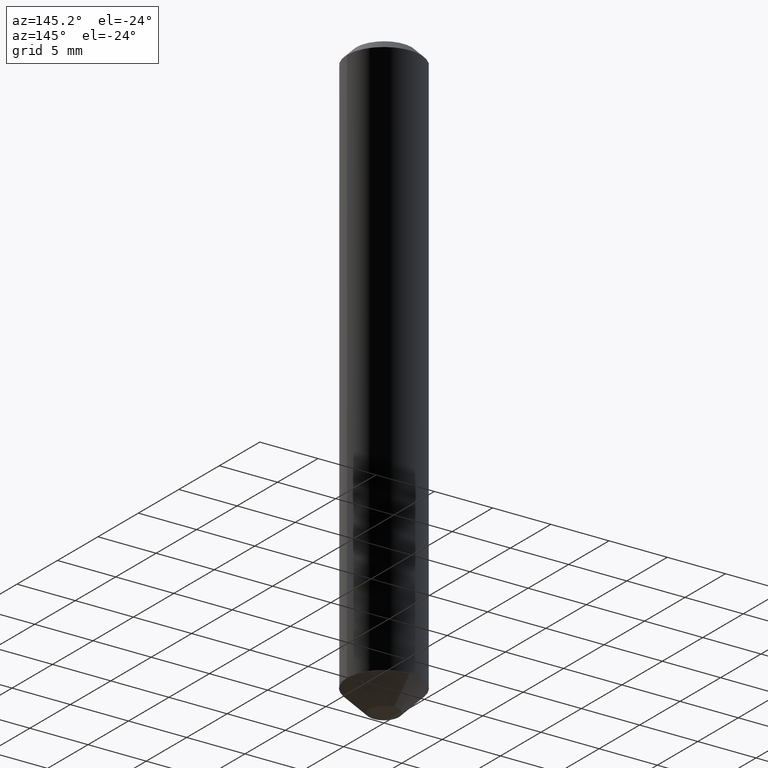
[diagram: clean part render]
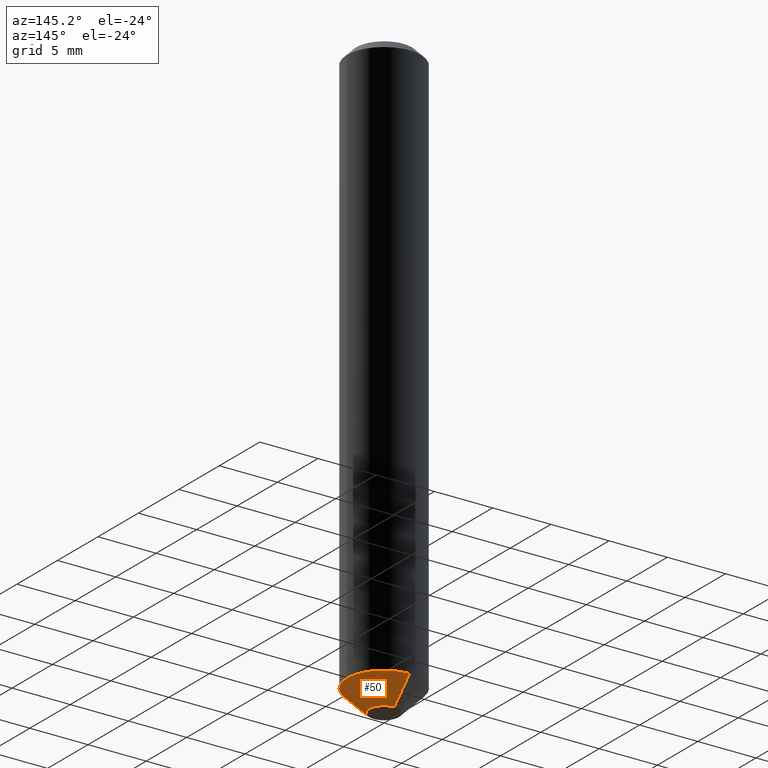
[diagram: same view with one face highlighted and labeled with its STEP entity id]
A machine part, auxiliary view. The second image highlights one B-rep face of the part: STEP entity #50.
In plain terms, the highlighted conical surface has half-angle 45.192 deg.
Its self-contained STEP definition (entity closure, byte-faithful):
#9 = AXIS2_PLACEMENT_3D ( 'NONE', #256, #299, #188 ) ;
#43 = CARTESIAN_POINT ( 'NONE',  ( 8.728703347108306705E-16, 0.1249999999999933248, -1.925499999999999989 ) ) ;
#45 = CARTESIAN_POINT ( 'NONE',  ( -6.110092342975009069E-16, -0.05000000000000699718, -1.999999999999999778 ) ) ;
#50 = ADVANCED_FACE ( 'NONE', ( #100 ), #413, .T. ) ;
#63 = ORIENTED_EDGE ( 'NONE', *, *, #178, .T. ) ;
#71 = CARTESIAN_POINT ( 'NONE',  ( 8.881784197001733529E-16, 0.1249999999999934358, -1.925499999999999989 ) ) ;
#79 = CARTESIAN_POINT ( 'NONE',  ( -8.575622497213960858E-16, -0.1250000000000070222, -1.925499999999998879 ) ) ;
#86 = VERTEX_POINT ( 'NONE', #79 ) ;
#94 = AXIS2_PLACEMENT_3D ( 'NONE', #135, #386, #128 ) ;
#98 = DIRECTION ( 'NONE',  ( -6.982962677686265922E-15, -1.000000000000000000, 4.370956789862815627E-15 ) ) ;
#100 = FACE_OUTER_BOUND ( 'NONE', #353, .T. ) ;
#119 = ORIENTED_EDGE ( 'NONE', *, *, #185, .F. ) ;
#123 = VERTEX_POINT ( 'NONE', #279 ) ;
#128 = DIRECTION ( 'NONE',  ( 6.982962677686266711E-15, 1.000000000000000000, -5.463695987328525648E-15 ) ) ;
#130 = DIRECTION ( 'NONE',  ( 5.041071339380618212E-15, 0.7094677189244624760, 0.7047379341316314383 ) ) ;
#135 = CARTESIAN_POINT ( 'NONE',  ( 4.890498988144930849E-29, -6.983590812541921448E-15, -2.000000000000000000 ) ) ;
#137 = DIRECTION ( 'NONE',  ( -4.954186602272732689E-15, -0.7094677189244577020, 0.7047379341316364343 ) ) ;
#178 = EDGE_CURVE ( 'NONE', #397, #86, #366, .T. ) ;
#179 = EDGE_CURVE ( 'NONE', #123, #397, #360, .T. ) ;
#185 = EDGE_CURVE ( 'NONE', #123, #246, #290, .T. ) ;
#188 = DIRECTION ( 'NONE',  ( 6.982962677686265922E-15, 1.000000000000000000, -4.370956789862815627E-15 ) ) ;
#208 = CARTESIAN_POINT ( 'NONE',  ( -8.728703347107373877E-16, -0.1250000000000068834, -1.925499999999998879 ) ) ;
#215 = ORIENTED_EDGE ( 'NONE', *, *, #179, .T. ) ;
#231 = CARTESIAN_POINT ( 'NONE',  ( 4.708747262147976865E-29, -6.722851505508178377E-15, -1.925499999999999545 ) ) ;
#238 = VECTOR ( 'NONE', #130, 39.37007874015748854 ) ;
#241 = LINE ( 'NONE', #208, #253 ) ;
#246 = VERTEX_POINT ( 'NONE', #45 ) ;
#253 = VECTOR ( 'NONE', #137, 39.37007874015748143 ) ;
#256 = CARTESIAN_POINT ( 'NONE',  ( 4.708747262147976865E-29, -6.722851505508178377E-15, -1.925499999999999545 ) ) ;
#279 = CARTESIAN_POINT ( 'NONE',  ( 6.217248937901361381E-16, 0.04999999999999302919, -2.000000000000000444 ) ) ;
#290 = CIRCLE ( 'NONE', #94, 0.05000000000000000971 ) ;
#299 = DIRECTION ( 'NONE',  ( 2.439620483180574528E-29, -3.499856470251552244E-15, -1.000000000000000000 ) ) ;
#329 = EDGE_CURVE ( 'NONE', #246, #86, #241, .T. ) ;
#353 = EDGE_LOOP ( 'NONE', ( #119, #215, #63, #377 ) ) ;
#360 = LINE ( 'NONE', #71, #238 ) ;
#365 = DIRECTION ( 'NONE',  ( -2.439620483180574528E-29, 3.499856470251552244E-15, 1.000000000000000000 ) ) ;
#366 = CIRCLE ( 'NONE', #9, 0.1250000000000001665 ) ;
#372 = AXIS2_PLACEMENT_3D ( 'NONE', #231, #365, #98 ) ;
#377 = ORIENTED_EDGE ( 'NONE', *, *, #329, .F. ) ;
#386 = DIRECTION ( 'NONE',  ( 2.439620483180574528E-29, -3.499856470251552244E-15, -1.000000000000000000 ) ) ;
#397 = VERTEX_POINT ( 'NONE', #43 ) ;
#413 = CONICAL_SURFACE ( 'NONE', #372, 0.1250000000000001665, 0.7887426325329172094 ) ;